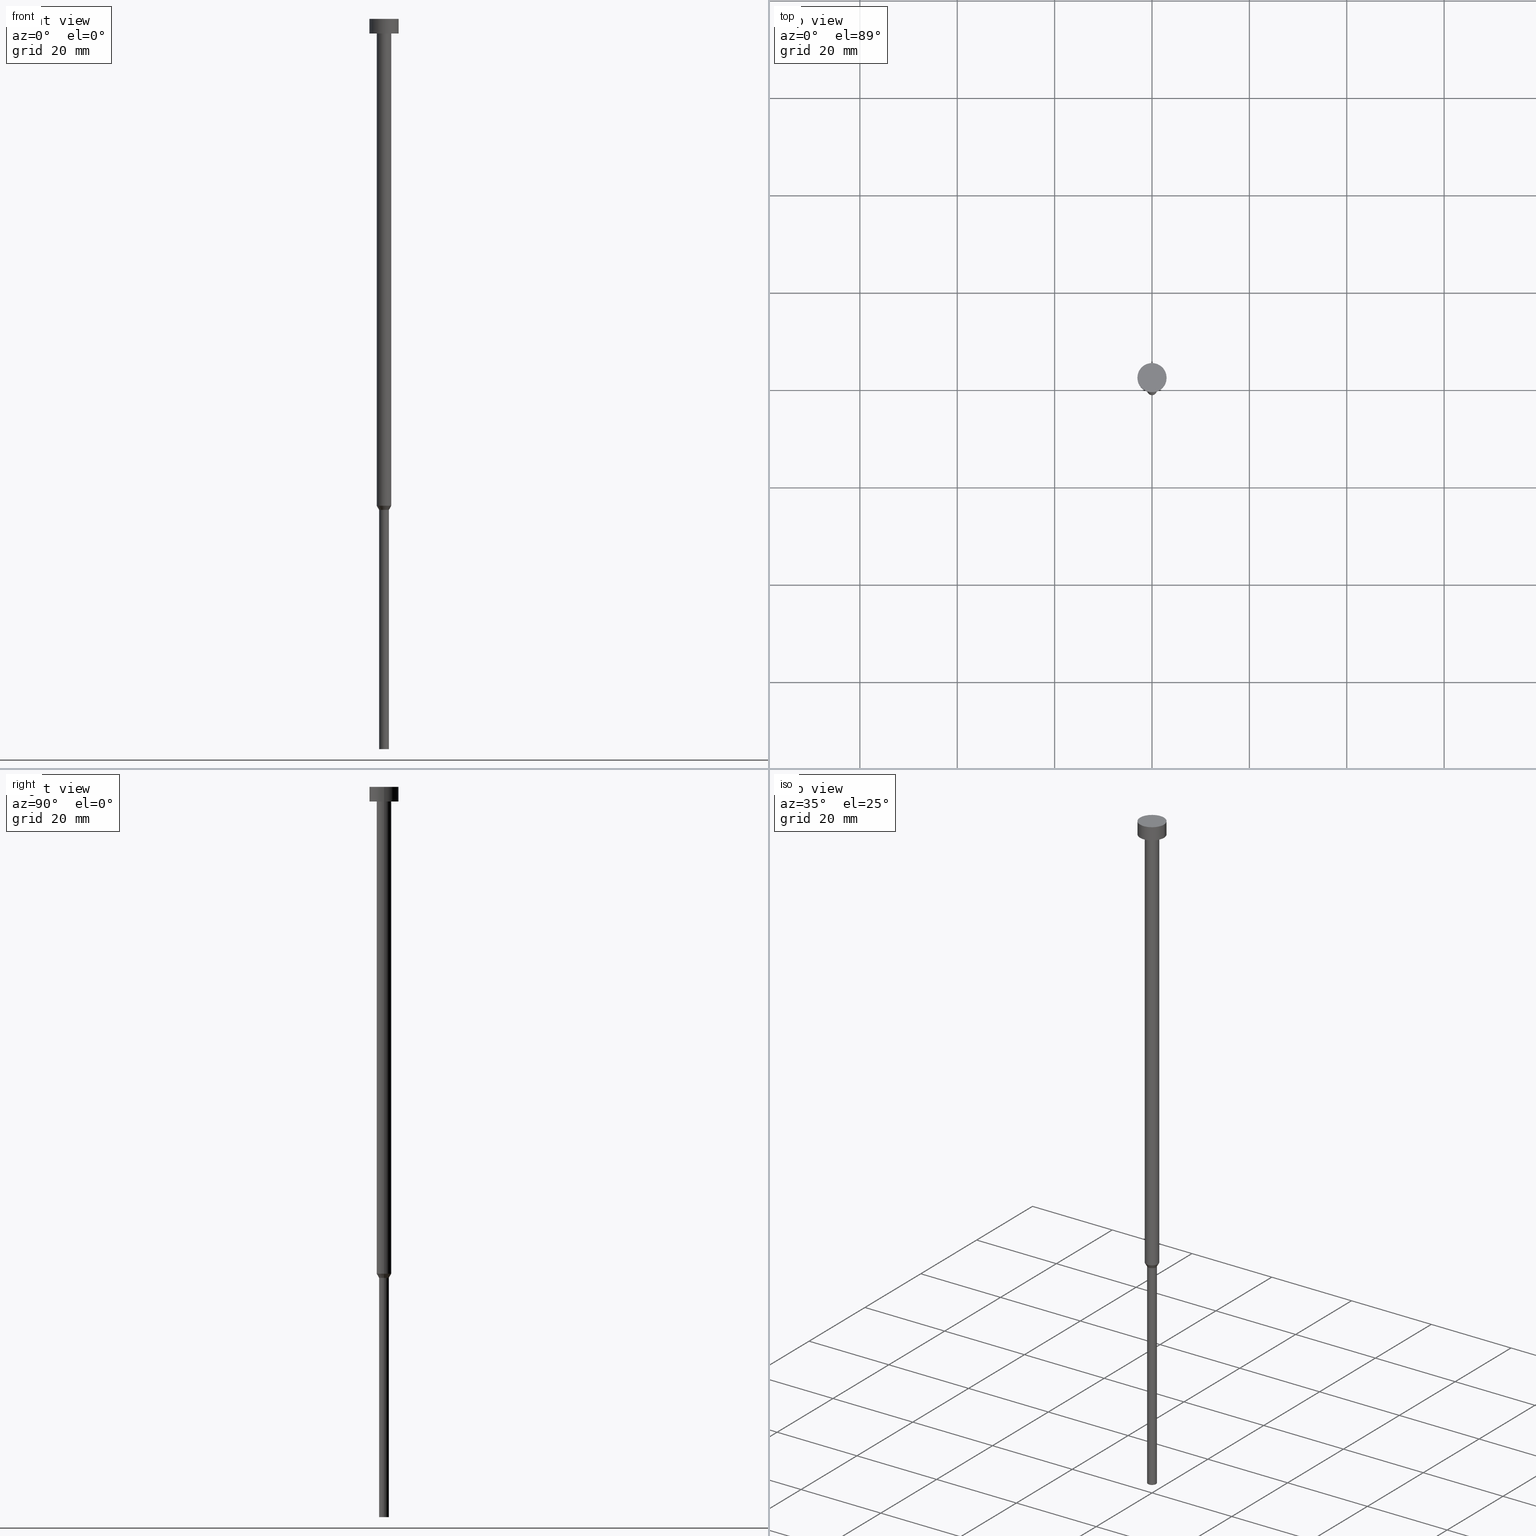
[diagram: canonical four-view strip — front | top / right | iso, engineering-drawing reading convention]
A machine part, canonical four-view strip (front | top / right | iso — engineering-drawing reading convention). The complete STEP part file that produces these views, byte-faithful:
ISO-10303-21;
HEADER;
FILE_DESCRIPTION (( 'STEP AP203' ),
    '1' );
FILE_NAME ('7362.STEP',
    '2023-02-13T08:57:03',
    ( '' ),
    ( '' ),
    'SwSTEP 2.0',
    'SolidWorks 2019',
    '' );
FILE_SCHEMA (( 'CONFIG_CONTROL_DESIGN' ));
ENDSEC;

DATA;
#1 = CARTESIAN_POINT ( 'NONE',  ( 1.000000000000000000, 0.000000000000000000, -150.0000000000000000 ) ) ;
#2 = COORDINATED_UNIVERSAL_TIME_OFFSET ( 1, 0, .AHEAD. ) ;
#3 = DIRECTION ( 'NONE',  ( -0.000000000000000000, -0.000000000000000000, 1.000000000000000000 ) ) ;
#4 = PRODUCT_RELATED_PRODUCT_CATEGORY ( 'detail', '', ( #232 ) ) ;
#5 = AXIS2_PLACEMENT_3D ( 'NONE', #353, #264, #238 ) ;
#6 = CALENDAR_DATE ( 2023, 13, 2 ) ;
#7 = PERSON_AND_ORGANIZATION ( #204, #226 ) ;
#8 = AXIS2_PLACEMENT_3D ( 'NONE', #223, #24, #330 ) ;
#9 = ORIENTED_EDGE ( 'NONE', *, *, #192, .F. ) ;
#10 = DIRECTION ( 'NONE',  ( 1.000000000000000000, 0.000000000000000000, 0.000000000000000000 ) ) ;
#11 = VECTOR ( 'NONE', #70, 1000.000000000000000 ) ;
#12 = ORIENTED_EDGE ( 'NONE', *, *, #20, .F. ) ;
#13 = CC_DESIGN_DATE_AND_TIME_ASSIGNMENT ( #171, #53, ( #220 ) ) ;
#14 = VERTEX_POINT ( 'NONE', #102 ) ;
#15 = FACE_OUTER_BOUND ( 'NONE', #239, .T. ) ;
#16 = LOCAL_TIME ( 9, 57, 3.000000000000000000, #56 ) ;
#17 = DIRECTION ( 'NONE',  ( -0.000000000000000000, -0.000000000000000000, 1.000000000000000000 ) ) ;
#18 = DIRECTION ( 'NONE',  ( 1.000000000000000000, 0.000000000000000000, 0.000000000000000000 ) ) ;
#19 = DIRECTION ( 'NONE',  ( -0.000000000000000000, -0.000000000000000000, 1.000000000000000000 ) ) ;
#20 = EDGE_CURVE ( 'NONE', #209, #325, #319, .T. ) ;
#21 = CARTESIAN_POINT ( 'NONE',  ( 0.000000000000000000, 0.000000000000000000, -100.8660254037844481 ) ) ;
#22 = APPROVAL_ROLE ( '' ) ;
#23 = CARTESIAN_POINT ( 'NONE',  ( -3.000000000000000000, 3.673940397442059868E-16, -3.673940397442059868E-16 ) ) ;
#24 = DIRECTION ( 'NONE',  ( 0.000000000000000000, 0.000000000000000000, -1.000000000000000000 ) ) ;
#25 = APPROVAL_ROLE ( '' ) ;
#26 = DATE_AND_TIME ( #91, #121 ) ;
#27 = EDGE_CURVE ( 'NONE', #328, #36, #272, .T. ) ;
#28 = VECTOR ( 'NONE', #54, 1000.000000000000114 ) ;
#29 = ADVANCED_FACE ( 'NONE', ( #244 ), #352, .T. ) ;
#30 = ORIENTED_EDGE ( 'NONE', *, *, #317, .T. ) ;
#31 = AXIS2_PLACEMENT_3D ( 'NONE', #222, #137, #355 ) ;
#32 = ADVANCED_FACE ( 'NONE', ( #193 ), #123, .T. ) ;
#33 = CARTESIAN_POINT ( 'NONE',  ( 0.000000000000000000, 0.000000000000000000, -3.000000000000000444 ) ) ;
#34 = FACE_OUTER_BOUND ( 'NONE', #153, .T. ) ;
#35 = CC_DESIGN_APPROVAL ( #64, ( #207 ) ) ;
#36 = VERTEX_POINT ( 'NONE', #305 ) ;
#37 = FACE_OUTER_BOUND ( 'NONE', #131, .T. ) ;
#38 = ORIENTED_EDGE ( 'NONE', *, *, #237, .T. ) ;
#39 = FACE_OUTER_BOUND ( 'NONE', #45, .T. ) ;
#40 = ORIENTED_EDGE ( 'NONE', *, *, #237, .F. ) ;
#41 = CYLINDRICAL_SURFACE ( 'NONE', #213, 1.000000000000000000 ) ;
#42 = CARTESIAN_POINT ( 'NONE',  ( 0.000000000000000000, 0.000000000000000000, -150.0000000000000000 ) ) ;
#43 = CIRCLE ( 'NONE', #5, 1.500000000000000000 ) ;
#44 = AXIS2_PLACEMENT_3D ( 'NONE', #289, #127, #292 ) ;
#45 = EDGE_LOOP ( 'NONE', ( #95, #124, #85, #259 ) ) ;
#46 = CIRCLE ( 'NONE', #306, 3.000000000000000000 ) ;
#47 = CARTESIAN_POINT ( 'NONE',  ( 0.000000000000000000, 0.000000000000000000, -3.673940397442059868E-16 ) ) ;
#48 = DIRECTION ( 'NONE',  ( 1.000000000000000000, 0.000000000000000000, 0.000000000000000000 ) ) ;
#49 = CARTESIAN_POINT ( 'NONE',  ( 0.000000000000000000, 0.000000000000000000, 0.000000000000000000 ) ) ;
#50 = ORIENTED_EDGE ( 'NONE', *, *, #221, .T. ) ;
#51 = CARTESIAN_POINT ( 'NONE',  ( 0.000000000000000000, 0.000000000000000000, 0.000000000000000000 ) ) ;
#52 = CARTESIAN_POINT ( 'NONE',  ( -1.500000000000000000, 1.836970198721029934E-16, -100.0000000000000000 ) ) ;
#53 = DATE_TIME_ROLE ( 'creation_date' ) ;
#54 = DIRECTION ( 'NONE',  ( 0.4999999999999981681, 0.000000000000000000, 0.8660254037844395958 ) ) ;
#55 = APPLICATION_PROTOCOL_DEFINITION ( 'international standard', 'config_control_design', 1994, #72 ) ;
#56 = COORDINATED_UNIVERSAL_TIME_OFFSET ( 1, 0, .AHEAD. ) ;
#57 = AXIS2_PLACEMENT_3D ( 'NONE', #104, #258, #125 ) ;
#58 = PERSON_AND_ORGANIZATION ( #204, #226 ) ;
#59 = APPROVAL_STATUS ( 'not_yet_approved' ) ;
#60 = LOCAL_TIME ( 9, 57, 3.000000000000000000, #310 ) ;
#61 = CARTESIAN_POINT ( 'NONE',  ( 1.500000000000000000, 0.000000000000000000, 0.000000000000000000 ) ) ;
#62 = ORIENTED_EDGE ( 'NONE', *, *, #188, .T. ) ;
#63 = DIRECTION ( 'NONE',  ( -0.000000000000000000, -0.000000000000000000, 1.000000000000000000 ) ) ;
#64 = APPROVAL ( #59, 'NEUR�EN�' ) ;
#65 = CIRCLE ( 'NONE', #165, 1.500000000000000000 ) ;
#66 = ORIENTED_EDGE ( 'NONE', *, *, #172, .F. ) ;
#67 = DIRECTION ( 'NONE',  ( 1.000000000000000000, 0.000000000000000000, 0.000000000000000000 ) ) ;
#68 = CARTESIAN_POINT ( 'NONE',  ( -1.000000000000000000, 1.224646799147353207E-16, 0.000000000000000000 ) ) ;
#69 = EDGE_LOOP ( 'NONE', ( #81, #66 ) ) ;
#70 = DIRECTION ( 'NONE',  ( -0.000000000000000000, -0.000000000000000000, 1.000000000000000000 ) ) ;
#71 = AXIS2_PLACEMENT_3D ( 'NONE', #138, #86, #225 ) ;
#72 = APPLICATION_CONTEXT ( 'configuration controlled 3d designs of mechanical parts and assemblies' ) ;
#73 = ADVANCED_FACE ( 'NONE', ( #15 ), #109, .T. ) ;
#74 = VERTEX_POINT ( 'NONE', #298 ) ;
#75 = CARTESIAN_POINT ( 'NONE',  ( 0.000000000000000000, 0.000000000000000000, -100.0000000000000000 ) ) ;
#76 = ORIENTED_EDGE ( 'NONE', *, *, #293, .T. ) ;
#77 = CARTESIAN_POINT ( 'NONE',  ( -3.000000000000000000, 3.673940397442059868E-16, -3.000000000000000444 ) ) ;
#78 = DIRECTION ( 'NONE',  ( 1.000000000000000000, 0.000000000000000000, 0.000000000000000000 ) ) ;
#79 = FACE_OUTER_BOUND ( 'NONE', #184, .T. ) ;
#80 = CC_DESIGN_PERSON_AND_ORGANIZATION_ASSIGNMENT ( #229, #279, ( #207 ) ) ;
#81 = ORIENTED_EDGE ( 'NONE', *, *, #173, .F. ) ;
#82 = DIRECTION ( 'NONE',  ( -0.000000000000000000, -0.000000000000000000, 1.000000000000000000 ) ) ;
#83 = ADVANCED_FACE ( 'NONE', ( #162 ), #41, .T. ) ;
#84 = AXIS2_PLACEMENT_3D ( 'NONE', #133, #265, #10 ) ;
#85 = ORIENTED_EDGE ( 'NONE', *, *, #268, .F. ) ;
#86 = DIRECTION ( 'NONE',  ( -0.000000000000000000, -0.000000000000000000, 1.000000000000000000 ) ) ;
#87 = FACE_OUTER_BOUND ( 'NONE', #69, .T. ) ;
#88 =( LENGTH_UNIT ( ) NAMED_UNIT ( * ) SI_UNIT ( .MILLI., .METRE. ) );
#89 = PERSON_AND_ORGANIZATION ( #204, #226 ) ;
#90 =( GEOMETRIC_REPRESENTATION_CONTEXT ( 3 ) GLOBAL_UNCERTAINTY_ASSIGNED_CONTEXT ( ( #332 ) ) GLOBAL_UNIT_ASSIGNED_CONTEXT ( ( #88, #118, #309 ) ) REPRESENTATION_CONTEXT ( 'NONE', 'WORKASPACE' ) );
#91 = CALENDAR_DATE ( 2023, 13, 2 ) ;
#92 = PRODUCT_DEFINITION_SHAPE ( 'NONE', 'NONE',  #220 ) ;
#93 = ADVANCED_FACE ( 'NONE', ( #39 ), #273, .T. ) ;
#94 = DATE_AND_TIME ( #149, #274 ) ;
#95 = ORIENTED_EDGE ( 'NONE', *, *, #290, .T. ) ;
#96 = CONICAL_SURFACE ( 'NONE', #288, 1.500000000000000000, 0.5235987755982968173 ) ;
#97 = PERSON_AND_ORGANIZATION_ROLE ( 'creator' ) ;
#98 = CC_DESIGN_DATE_AND_TIME_ASSIGNMENT ( #206, #282, ( #179 ) ) ;
#99 = EDGE_CURVE ( 'NONE', #307, #36, #46, .T. ) ;
#100 = VECTOR ( 'NONE', #253, 1000.000000000000114 ) ;
#101 = AXIS2_PLACEMENT_3D ( 'NONE', #51, #267, #107 ) ;
#102 = CARTESIAN_POINT ( 'NONE',  ( -1.000000000000000000, 1.224646799147353207E-16, -150.0000000000000000 ) ) ;
#103 = DIRECTION ( 'NONE',  ( 1.000000000000000000, 0.000000000000000000, 0.000000000000000000 ) ) ;
#104 = CARTESIAN_POINT ( 'NONE',  ( 0.000000000000000000, 0.000000000000000000, -150.0000000000000000 ) ) ;
#105 = EDGE_CURVE ( 'NONE', #215, #74, #148, .T. ) ;
#106 = ORIENTED_EDGE ( 'NONE', *, *, #99, .F. ) ;
#107 = DIRECTION ( 'NONE',  ( 1.000000000000000000, 0.000000000000000000, 0.000000000000000000 ) ) ;
#108 = VERTEX_POINT ( 'NONE', #77 ) ;
#109 = PLANE ( 'NONE',  #346 ) ;
#110 = CARTESIAN_POINT ( 'NONE',  ( 0.000000000000000000, 0.000000000000000000, 0.000000000000000000 ) ) ;
#111 = CARTESIAN_POINT ( 'NONE',  ( 0.000000000000000000, 0.000000000000000000, 0.000000000000000000 ) ) ;
#112 = DIRECTION ( 'NONE',  ( -0.000000000000000000, -0.000000000000000000, 1.000000000000000000 ) ) ;
#113 = ORIENTED_EDGE ( 'NONE', *, *, #27, .T. ) ;
#114 = DIRECTION ( 'NONE',  ( 1.000000000000000000, 0.000000000000000000, 0.000000000000000000 ) ) ;
#115 = EDGE_CURVE ( 'NONE', #136, #209, #159, .T. ) ;
#116 = CIRCLE ( 'NONE', #294, 1.000000000000000000 ) ;
#117 = CYLINDRICAL_SURFACE ( 'NONE', #199, 3.000000000000000000 ) ;
#118 =( NAMED_UNIT ( * ) PLANE_ANGLE_UNIT ( ) SI_UNIT ( $, .RADIAN. ) );
#119 = PERSON_AND_ORGANIZATION ( #204, #226 ) ;
#120 = PERSON_AND_ORGANIZATION_ROLE ( 'creator' ) ;
#121 = LOCAL_TIME ( 9, 57, 3.000000000000000000, #283 ) ;
#122 = CIRCLE ( 'NONE', #31, 3.000000000000000000 ) ;
#123 = CONICAL_SURFACE ( 'NONE', #176, 1.500000000000000000, 0.5235987755982968173 ) ;
#124 = ORIENTED_EDGE ( 'NONE', *, *, #115, .T. ) ;
#125 = DIRECTION ( 'NONE',  ( 1.000000000000000000, 0.000000000000000000, 0.000000000000000000 ) ) ;
#126 = CYLINDRICAL_SURFACE ( 'NONE', #84, 1.000000000000000000 ) ;
#127 = DIRECTION ( 'NONE',  ( -0.000000000000000000, -0.000000000000000000, 1.000000000000000000 ) ) ;
#128 = CIRCLE ( 'NONE', #44, 3.000000000000000000 ) ;
#129 = DIRECTION ( 'NONE',  ( -0.000000000000000000, -0.000000000000000000, 1.000000000000000000 ) ) ;
#130 = DIRECTION ( 'NONE',  ( -0.000000000000000000, -0.000000000000000000, 1.000000000000000000 ) ) ;
#131 = EDGE_LOOP ( 'NONE', ( #189, #30, #40, #340 ) ) ;
#132 = CARTESIAN_POINT ( 'NONE',  ( -1.500000000000000000, 1.836970198721029934E-16, -100.0000000000000000 ) ) ;
#133 = CARTESIAN_POINT ( 'NONE',  ( 0.000000000000000000, 0.000000000000000000, 0.000000000000000000 ) ) ;
#134 = DIRECTION ( 'NONE',  ( -0.000000000000000000, -0.000000000000000000, 1.000000000000000000 ) ) ;
#135 = LINE ( 'NONE', #195, #255 ) ;
#136 = VERTEX_POINT ( 'NONE', #132 ) ;
#137 = DIRECTION ( 'NONE',  ( -0.000000000000000000, -0.000000000000000000, 1.000000000000000000 ) ) ;
#138 = CARTESIAN_POINT ( 'NONE',  ( 0.000000000000000000, 0.000000000000000000, -3.000000000000000444 ) ) ;
#139 = MECHANICAL_CONTEXT ( 'NONE', #261, 'mechanical' ) ;
#140 = PERSON_AND_ORGANIZATION ( #204, #226 ) ;
#141 = AXIS2_PLACEMENT_3D ( 'NONE', #42, #252, #164 ) ;
#142 = AXIS2_PLACEMENT_3D ( 'NONE', #321, #161, #158 ) ;
#143 = DIRECTION ( 'NONE',  ( 0.000000000000000000, 0.000000000000000000, 1.000000000000000000 ) ) ;
#144 = PERSON_AND_ORGANIZATION ( #204, #226 ) ;
#145 = APPROVAL_DATE_TIME ( #26, #313 ) ;
#146 = CALENDAR_DATE ( 2023, 13, 2 ) ;
#147 = AXIS2_PLACEMENT_3D ( 'NONE', #49, #143, #250 ) ;
#148 = CIRCLE ( 'NONE', #151, 1.000000000000000000 ) ;
#149 = CALENDAR_DATE ( 2023, 13, 2 ) ;
#150 = ADVANCED_FACE ( 'NONE', ( #240 ), #96, .T. ) ;
#151 = AXIS2_PLACEMENT_3D ( 'NONE', #326, #19, #295 ) ;
#152 = ORIENTED_EDGE ( 'NONE', *, *, #187, .T. ) ;
#153 = EDGE_LOOP ( 'NONE', ( #152, #50, #235, #9 ) ) ;
#154 = APPROVAL_PERSON_ORGANIZATION ( #336, #185, #180 ) ;
#155 = ORIENTED_EDGE ( 'NONE', *, *, #327, .F. ) ;
#156 = CARTESIAN_POINT ( 'NONE',  ( 0.000000000000000000, 0.000000000000000000, -1.836970198721029934E-16 ) ) ;
#157 = CARTESIAN_POINT ( 'NONE',  ( 0.000000000000000000, 0.000000000000000000, 0.000000000000000000 ) ) ;
#158 = DIRECTION ( 'NONE',  ( 1.000000000000000000, 0.000000000000000000, 0.000000000000000000 ) ) ;
#159 = LINE ( 'NONE', #201, #262 ) ;
#160 = FACE_BOUND ( 'NONE', #197, .T. ) ;
#161 = DIRECTION ( 'NONE',  ( -0.000000000000000000, -0.000000000000000000, 1.000000000000000000 ) ) ;
#162 = FACE_OUTER_BOUND ( 'NONE', #286, .T. ) ;
#163 = CARTESIAN_POINT ( 'NONE',  ( 0.000000000000000000, 0.000000000000000000, -100.0000000000000000 ) ) ;
#164 = DIRECTION ( 'NONE',  ( -1.000000000000000000, 0.000000000000000000, -0.000000000000000000 ) ) ;
#165 = AXIS2_PLACEMENT_3D ( 'NONE', #33, #296, #314 ) ;
#166 = VECTOR ( 'NONE', #17, 1000.000000000000000 ) ;
#167 = ORIENTED_EDGE ( 'NONE', *, *, #214, .T. ) ;
#168 = DIRECTION ( 'NONE',  ( -0.000000000000000000, -0.000000000000000000, 1.000000000000000000 ) ) ;
#169 = CC_DESIGN_PERSON_AND_ORGANIZATION_ASSIGNMENT ( #140, #228, ( #232 ) ) ;
#170 = ORIENTED_EDGE ( 'NONE', *, *, #293, .F. ) ;
#171 = DATE_AND_TIME ( #146, #334 ) ;
#172 = EDGE_CURVE ( 'NONE', #108, #328, #122, .T. ) ;
#173 = EDGE_CURVE ( 'NONE', #328, #108, #205, .T. ) ;
#174 = APPROVAL_STATUS ( 'not_yet_approved' ) ;
#175 = DATE_AND_TIME ( #6, #16 ) ;
#176 = AXIS2_PLACEMENT_3D ( 'NONE', #198, #218, #114 ) ;
#177 = APPROVAL_STATUS ( 'not_yet_approved' ) ;
#178 = CC_DESIGN_PERSON_AND_ORGANIZATION_ASSIGNMENT ( #119, #120, ( #207 ) ) ;
#179 = SECURITY_CLASSIFICATION ( '', '', #281 ) ;
#180 = APPROVAL_ROLE ( '' ) ;
#181 = EDGE_LOOP ( 'NONE', ( #278, #62, #291, #12 ) ) ;
#182 = FACE_OUTER_BOUND ( 'NONE', #233, .T. ) ;
#183 = EDGE_LOOP ( 'NONE', ( #155, #167, #76, #266 ) ) ;
#184 = EDGE_LOOP ( 'NONE', ( #333, #217 ) ) ;
#185 = APPROVAL ( #174, 'NEUR�EN�' ) ;
#186 = CARTESIAN_POINT ( 'NONE',  ( 1.000000000000000000, 0.000000000000000000, -100.8660254037844481 ) ) ;
#187 = EDGE_CURVE ( 'NONE', #343, #14, #219, .T. ) ;
#188 = EDGE_CURVE ( 'NONE', #136, #191, #43, .T. ) ;
#189 = ORIENTED_EDGE ( 'NONE', *, *, #173, .T. ) ;
#190 = CC_DESIGN_PERSON_AND_ORGANIZATION_ASSIGNMENT ( #89, #339, ( #179 ) ) ;
#191 = VERTEX_POINT ( 'NONE', #348 ) ;
#192 = EDGE_CURVE ( 'NONE', #343, #215, #216, .T. ) ;
#193 = FACE_OUTER_BOUND ( 'NONE', #183, .T. ) ;
#194 = DIRECTION ( 'NONE',  ( -0.000000000000000000, -0.000000000000000000, 1.000000000000000000 ) ) ;
#195 = CARTESIAN_POINT ( 'NONE',  ( -3.000000000000000000, 3.673940397442059868E-16, 0.000000000000000000 ) ) ;
#196 = PLANE ( 'NONE',  #8 ) ;
#197 = EDGE_LOOP ( 'NONE', ( #303, #285 ) ) ;
#198 = CARTESIAN_POINT ( 'NONE',  ( 0.000000000000000000, 0.000000000000000000, -100.0000000000000000 ) ) ;
#199 = AXIS2_PLACEMENT_3D ( 'NONE', #110, #112, #48 ) ;
#200 = ORIENTED_EDGE ( 'NONE', *, *, #214, .F. ) ;
#201 = CARTESIAN_POINT ( 'NONE',  ( -1.500000000000000000, 1.836970198721029934E-16, 0.000000000000000000 ) ) ;
#202 = CARTESIAN_POINT ( 'NONE',  ( 1.500000000000000000, 0.000000000000000000, -100.0000000000000000 ) ) ;
#203 = LINE ( 'NONE', #52, #100 ) ;
#204 = PERSON ( 'NEUR�EN�', 'NEUR�EN�', 'NEUR�EN�', ('NEUR�EN�'), ('NEUR�EN�'), ('NEUR�EN�') ) ;
#205 = CIRCLE ( 'NONE', #71, 3.000000000000000000 ) ;
#206 = DATE_AND_TIME ( #337, #60 ) ;
#207 = PRODUCT_DEFINITION_FORMATION_WITH_SPECIFIED_SOURCE ( 'LIBOVOLN�', '', #232, .NOT_KNOWN. ) ;
#208 = ORIENTED_EDGE ( 'NONE', *, *, #290, .F. ) ;
#209 = VERTEX_POINT ( 'NONE', #275 ) ;
#210 = LINE ( 'NONE', #68, #304 ) ;
#211 = CIRCLE ( 'NONE', #351, 1.500000000000000000 ) ;
#212 = AXIS2_PLACEMENT_3D ( 'NONE', #249, #194, #300 ) ;
#213 = AXIS2_PLACEMENT_3D ( 'NONE', #329, #245, #103 ) ;
#214 = EDGE_CURVE ( 'NONE', #74, #215, #116, .T. ) ;
#215 = VERTEX_POINT ( 'NONE', #186 ) ;
#216 = LINE ( 'NONE', #322, #11 ) ;
#217 = ORIENTED_EDGE ( 'NONE', *, *, #248, .F. ) ;
#218 = DIRECTION ( 'NONE',  ( -0.000000000000000000, -0.000000000000000000, 1.000000000000000000 ) ) ;
#219 = CIRCLE ( 'NONE', #212, 1.000000000000000000 ) ;
#220 = PRODUCT_DEFINITION ( 'NEZN�M�', '', #207, #246 ) ;
#221 = EDGE_CURVE ( 'NONE', #14, #74, #210, .T. ) ;
#222 = CARTESIAN_POINT ( 'NONE',  ( 0.000000000000000000, 0.000000000000000000, -3.000000000000000444 ) ) ;
#223 = CARTESIAN_POINT ( 'NONE',  ( 0.000000000000000000, -3.000000000000000000, -3.000000000000000444 ) ) ;
#224 = ORIENTED_EDGE ( 'NONE', *, *, #221, .F. ) ;
#225 = DIRECTION ( 'NONE',  ( 1.000000000000000000, 0.000000000000000000, 0.000000000000000000 ) ) ;
#226 = ORGANIZATION ( 'NEUR�EN�', 'NEUR�EN�', '' ) ;
#227 = DIRECTION ( 'NONE',  ( -0.000000000000000000, -0.000000000000000000, 1.000000000000000000 ) ) ;
#228 = PERSON_AND_ORGANIZATION_ROLE ( 'design_owner' ) ;
#229 = PERSON_AND_ORGANIZATION ( #204, #226 ) ;
#230 = COORDINATED_UNIVERSAL_TIME_OFFSET ( 1, 0, .AHEAD. ) ;
#231 = APPROVAL_PERSON_ORGANIZATION ( #58, #313, #22 ) ;
#232 = PRODUCT ( '7362', '7362', '', ( #139 ) ) ;
#233 = EDGE_LOOP ( 'NONE', ( #316, #312, #113, #106 ) ) ;
#234 = APPROVAL_DATE_TIME ( #94, #185 ) ;
#235 = ORIENTED_EDGE ( 'NONE', *, *, #105, .F. ) ;
#236 = VECTOR ( 'NONE', #341, 1000.000000000000000 ) ;
#237 = EDGE_CURVE ( 'NONE', #36, #307, #128, .T. ) ;
#238 = DIRECTION ( 'NONE',  ( 1.000000000000000000, 0.000000000000000000, 0.000000000000000000 ) ) ;
#239 = EDGE_LOOP ( 'NONE', ( #38, #263 ) ) ;
#240 = FACE_OUTER_BOUND ( 'NONE', #347, .T. ) ;
#241 = CARTESIAN_POINT ( 'NONE',  ( 1.500000000000000000, 0.000000000000000000, -3.000000000000000444 ) ) ;
#242 = DIRECTION ( 'NONE',  ( 1.000000000000000000, 0.000000000000000000, 0.000000000000000000 ) ) ;
#243 = AXIS2_PLACEMENT_3D ( 'NONE', #157, #63, #344 ) ;
#244 = FACE_OUTER_BOUND ( 'NONE', #181, .T. ) ;
#245 = DIRECTION ( 'NONE',  ( -0.000000000000000000, -0.000000000000000000, 1.000000000000000000 ) ) ;
#246 = DESIGN_CONTEXT ( 'detailed design', #72, 'design' ) ;
#247 = ORIENTED_EDGE ( 'NONE', *, *, #248, .T. ) ;
#248 = EDGE_CURVE ( 'NONE', #14, #343, #256, .T. ) ;
#249 = CARTESIAN_POINT ( 'NONE',  ( 0.000000000000000000, 0.000000000000000000, -150.0000000000000000 ) ) ;
#250 = DIRECTION ( 'NONE',  ( 1.000000000000000000, 0.000000000000000000, 0.000000000000000000 ) ) ;
#251 = APPROVAL_DATE_TIME ( #175, #64 ) ;
#252 = DIRECTION ( 'NONE',  ( 0.000000000000000000, 0.000000000000000000, -1.000000000000000000 ) ) ;
#253 = DIRECTION ( 'NONE',  ( -0.4999999999999981681, 6.123233995736742617E-17, 0.8660254037844395958 ) ) ;
#254 = SHAPE_DEFINITION_REPRESENTATION ( #92, #297 ) ;
#255 = VECTOR ( 'NONE', #3, 1000.000000000000000 ) ;
#256 = CIRCLE ( 'NONE', #57, 1.000000000000000000 ) ;
#257 = CLOSED_SHELL ( 'NONE', ( #284, #93, #150, #323, #342, #83, #32, #29, #338, #287, #73 ) ) ;
#258 = DIRECTION ( 'NONE',  ( -0.000000000000000000, -0.000000000000000000, 1.000000000000000000 ) ) ;
#259 = ORIENTED_EDGE ( 'NONE', *, *, #320, .F. ) ;
#260 = DIRECTION ( 'NONE',  ( -0.000000000000000000, -0.000000000000000000, 1.000000000000000000 ) ) ;
#261 = APPLICATION_CONTEXT ( 'configuration controlled 3d designs of mechanical parts and assemblies' ) ;
#262 = VECTOR ( 'NONE', #129, 1000.000000000000000 ) ;
#263 = ORIENTED_EDGE ( 'NONE', *, *, #99, .T. ) ;
#264 = DIRECTION ( 'NONE',  ( -0.000000000000000000, -0.000000000000000000, 1.000000000000000000 ) ) ;
#265 = DIRECTION ( 'NONE',  ( -0.000000000000000000, -0.000000000000000000, 1.000000000000000000 ) ) ;
#266 = ORIENTED_EDGE ( 'NONE', *, *, #188, .F. ) ;
#267 = DIRECTION ( 'NONE',  ( -0.000000000000000000, -0.000000000000000000, 1.000000000000000000 ) ) ;
#268 = EDGE_CURVE ( 'NONE', #325, #209, #65, .T. ) ;
#269 = MANIFOLD_SOLID_BREP ( 'Rotovat1', #257 ) ;
#270 = CARTESIAN_POINT ( 'NONE',  ( 3.000000000000000000, 0.000000000000000000, 0.000000000000000000 ) ) ;
#271 = DIRECTION ( 'NONE',  ( 1.000000000000000000, 0.000000000000000000, 0.000000000000000000 ) ) ;
#272 = LINE ( 'NONE', #270, #166 ) ;
#273 = CYLINDRICAL_SURFACE ( 'NONE', #101, 1.500000000000000000 ) ;
#274 = LOCAL_TIME ( 9, 57, 3.000000000000000000, #230 ) ;
#275 = CARTESIAN_POINT ( 'NONE',  ( -1.500000000000000000, 1.836970198721029934E-16, -3.000000000000000444 ) ) ;
#276 = DIRECTION ( 'NONE',  ( 1.000000000000000000, 0.000000000000000000, 0.000000000000000000 ) ) ;
#277 = CARTESIAN_POINT ( 'NONE',  ( 3.000000000000000000, 0.000000000000000000, -3.000000000000000444 ) ) ;
#278 = ORIENTED_EDGE ( 'NONE', *, *, #115, .F. ) ;
#279 = PERSON_AND_ORGANIZATION_ROLE ( 'design_supplier' ) ;
#280 = AXIS2_PLACEMENT_3D ( 'NONE', #111, #82, #271 ) ;
#281 = SECURITY_CLASSIFICATION_LEVEL ( 'unclassified' ) ;
#282 = DATE_TIME_ROLE ( 'classification_date' ) ;
#283 = COORDINATED_UNIVERSAL_TIME_OFFSET ( 1, 0, .AHEAD. ) ;
#284 = ADVANCED_FACE ( 'NONE', ( #37 ), #350, .T. ) ;
#285 = ORIENTED_EDGE ( 'NONE', *, *, #20, .T. ) ;
#286 = EDGE_LOOP ( 'NONE', ( #224, #247, #331, #200 ) ) ;
#287 = ADVANCED_FACE ( 'NONE', ( #182 ), #117, .T. ) ;
#288 = AXIS2_PLACEMENT_3D ( 'NONE', #75, #134, #242 ) ;
#289 = CARTESIAN_POINT ( 'NONE',  ( 0.000000000000000000, 0.000000000000000000, -3.673940397442059868E-16 ) ) ;
#290 = EDGE_CURVE ( 'NONE', #191, #136, #211, .T. ) ;
#291 = ORIENTED_EDGE ( 'NONE', *, *, #320, .T. ) ;
#292 = DIRECTION ( 'NONE',  ( 1.000000000000000000, 0.000000000000000000, 0.000000000000000000 ) ) ;
#293 = EDGE_CURVE ( 'NONE', #215, #191, #335, .T. ) ;
#294 = AXIS2_PLACEMENT_3D ( 'NONE', #21, #130, #67 ) ;
#295 = DIRECTION ( 'NONE',  ( 1.000000000000000000, 0.000000000000000000, 0.000000000000000000 ) ) ;
#296 = DIRECTION ( 'NONE',  ( -0.000000000000000000, -0.000000000000000000, 1.000000000000000000 ) ) ;
#297 = ADVANCED_BREP_SHAPE_REPRESENTATION ( '7362', ( #269, #147 ), #90 ) ;
#298 = CARTESIAN_POINT ( 'NONE',  ( -1.000000000000000000, 1.224646799147353207E-16, -100.8660254037844481 ) ) ;
#299 = ORIENTED_EDGE ( 'NONE', *, *, #105, .T. ) ;
#300 = DIRECTION ( 'NONE',  ( 1.000000000000000000, 0.000000000000000000, 0.000000000000000000 ) ) ;
#301 = LINE ( 'NONE', #61, #236 ) ;
#302 = PLANE ( 'NONE',  #141 ) ;
#303 = ORIENTED_EDGE ( 'NONE', *, *, #268, .T. ) ;
#304 = VECTOR ( 'NONE', #260, 1000.000000000000000 ) ;
#305 = CARTESIAN_POINT ( 'NONE',  ( 3.000000000000000000, 0.000000000000000000, -3.673940397442059868E-16 ) ) ;
#306 = AXIS2_PLACEMENT_3D ( 'NONE', #47, #168, #18 ) ;
#307 = VERTEX_POINT ( 'NONE', #23 ) ;
#308 = DIRECTION ( 'NONE',  ( 0.000000000000000000, -0.000000000000000000, 1.000000000000000000 ) ) ;
#309 =( NAMED_UNIT ( * ) SI_UNIT ( $, .STERADIAN. ) SOLID_ANGLE_UNIT ( ) );
#310 = COORDINATED_UNIVERSAL_TIME_OFFSET ( 1, 0, .AHEAD. ) ;
#311 = CC_DESIGN_APPROVAL ( #313, ( #179 ) ) ;
#312 = ORIENTED_EDGE ( 'NONE', *, *, #172, .T. ) ;
#313 = APPROVAL ( #177, 'NEUR�EN�' ) ;
#314 = DIRECTION ( 'NONE',  ( 1.000000000000000000, 0.000000000000000000, 0.000000000000000000 ) ) ;
#315 = CC_DESIGN_PERSON_AND_ORGANIZATION_ASSIGNMENT ( #7, #97, ( #220 ) ) ;
#316 = ORIENTED_EDGE ( 'NONE', *, *, #317, .F. ) ;
#317 = EDGE_CURVE ( 'NONE', #108, #307, #135, .T. ) ;
#318 = CC_DESIGN_SECURITY_CLASSIFICATION ( #179, ( #207 ) ) ;
#319 = CIRCLE ( 'NONE', #142, 1.500000000000000000 ) ;
#320 = EDGE_CURVE ( 'NONE', #191, #325, #301, .T. ) ;
#321 = CARTESIAN_POINT ( 'NONE',  ( 0.000000000000000000, 0.000000000000000000, -3.000000000000000444 ) ) ;
#322 = CARTESIAN_POINT ( 'NONE',  ( 1.000000000000000000, 0.000000000000000000, 0.000000000000000000 ) ) ;
#323 = ADVANCED_FACE ( 'NONE', ( #34 ), #126, .T. ) ;
#324 = APPROVAL_PERSON_ORGANIZATION ( #144, #64, #25 ) ;
#325 = VERTEX_POINT ( 'NONE', #241 ) ;
#326 = CARTESIAN_POINT ( 'NONE',  ( 0.000000000000000000, 0.000000000000000000, -100.8660254037844481 ) ) ;
#327 = EDGE_CURVE ( 'NONE', #74, #136, #203, .T. ) ;
#328 = VERTEX_POINT ( 'NONE', #277 ) ;
#329 = CARTESIAN_POINT ( 'NONE',  ( 0.000000000000000000, 0.000000000000000000, 0.000000000000000000 ) ) ;
#330 = DIRECTION ( 'NONE',  ( -1.000000000000000000, 0.000000000000000000, -0.000000000000000000 ) ) ;
#331 = ORIENTED_EDGE ( 'NONE', *, *, #192, .T. ) ;
#332 = UNCERTAINTY_MEASURE_WITH_UNIT (LENGTH_MEASURE( 1.000000000000000082E-05 ), #88, 'distance_accuracy_value', 'NONE');
#333 = ORIENTED_EDGE ( 'NONE', *, *, #187, .F. ) ;
#334 = LOCAL_TIME ( 9, 57, 3.000000000000000000, #2 ) ;
#335 = LINE ( 'NONE', #202, #28 ) ;
#336 = PERSON_AND_ORGANIZATION ( #204, #226 ) ;
#337 = CALENDAR_DATE ( 2023, 13, 2 ) ;
#338 = ADVANCED_FACE ( 'NONE', ( #160, #87 ), #196, .T. ) ;
#339 = PERSON_AND_ORGANIZATION_ROLE ( 'classification_officer' ) ;
#340 = ORIENTED_EDGE ( 'NONE', *, *, #27, .F. ) ;
#341 = DIRECTION ( 'NONE',  ( -0.000000000000000000, -0.000000000000000000, 1.000000000000000000 ) ) ;
#342 = ADVANCED_FACE ( 'NONE', ( #79 ), #302, .T. ) ;
#343 = VERTEX_POINT ( 'NONE', #1 ) ;
#344 = DIRECTION ( 'NONE',  ( 1.000000000000000000, 0.000000000000000000, 0.000000000000000000 ) ) ;
#345 = CC_DESIGN_APPROVAL ( #185, ( #220 ) ) ;
#346 = AXIS2_PLACEMENT_3D ( 'NONE', #156, #308, #276 ) ;
#347 = EDGE_LOOP ( 'NONE', ( #299, #349, #208, #170 ) ) ;
#348 = CARTESIAN_POINT ( 'NONE',  ( 1.500000000000000000, 0.000000000000000000, -100.0000000000000000 ) ) ;
#349 = ORIENTED_EDGE ( 'NONE', *, *, #327, .T. ) ;
#350 = CYLINDRICAL_SURFACE ( 'NONE', #243, 3.000000000000000000 ) ;
#351 = AXIS2_PLACEMENT_3D ( 'NONE', #163, #227, #78 ) ;
#352 = CYLINDRICAL_SURFACE ( 'NONE', #280, 1.500000000000000000 ) ;
#353 = CARTESIAN_POINT ( 'NONE',  ( 0.000000000000000000, 0.000000000000000000, -100.0000000000000000 ) ) ;
#354 = APPLICATION_PROTOCOL_DEFINITION ( 'international standard', 'config_control_design', 1994, #261 ) ;
#355 = DIRECTION ( 'NONE',  ( 1.000000000000000000, 0.000000000000000000, 0.000000000000000000 ) ) ;
ENDSEC;
END-ISO-10303-21;
